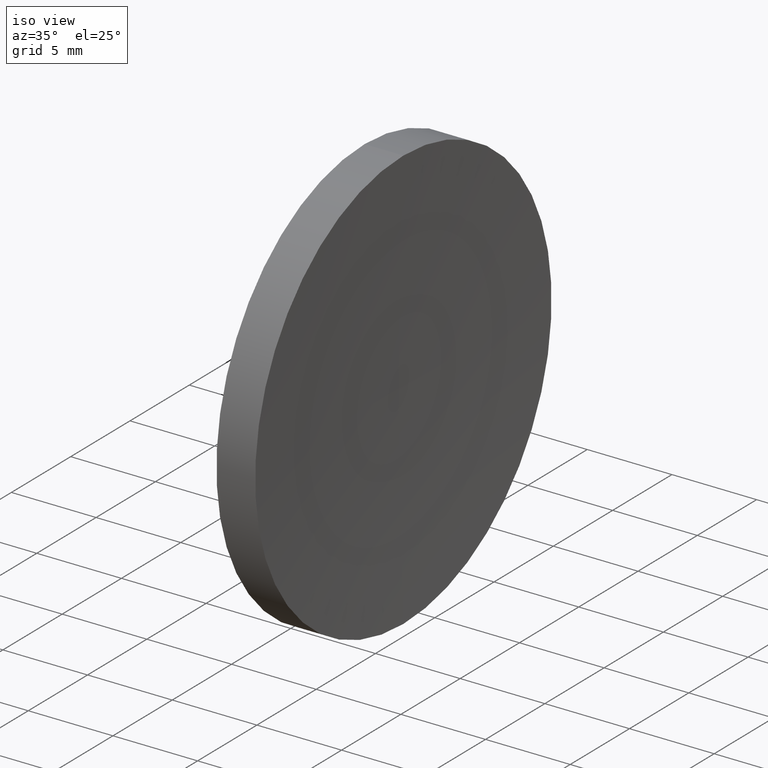
[diagram: clean part render]
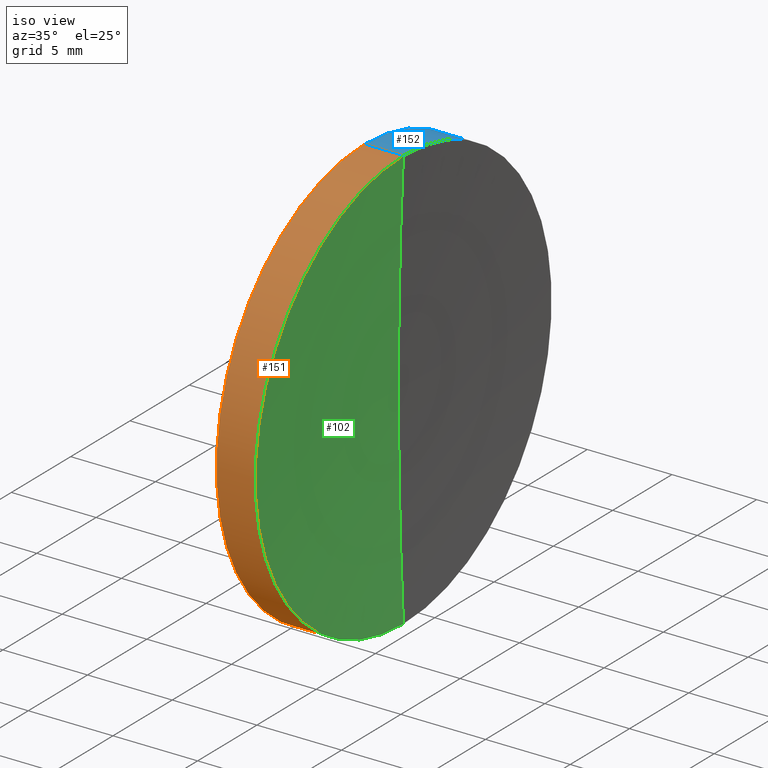
[diagram: same view with three faces highlighted in distinct colors, each labeled with its STEP entity id]
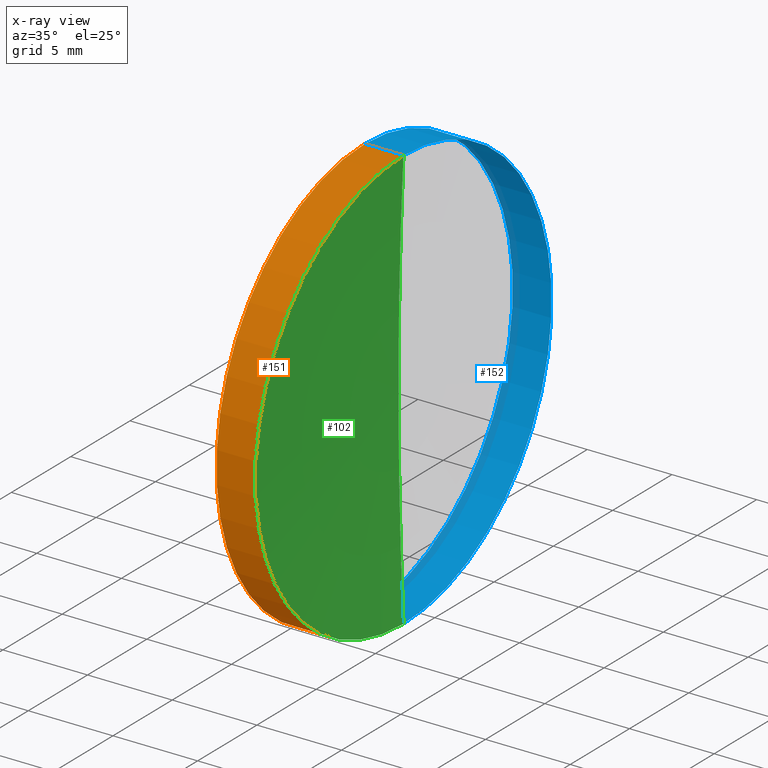
[diagram: x-ray of the same camera — body ghosted, the three highlighted faces saturated]
A machine part, iso view with three faces highlighted in distinct colors.
The next image is the same camera in x-ray (body ghosted, the three faces saturated) — at least one of them is partly hidden behind the body in this view.
Their STEP definitions:

[orange] entity #151 — the highlighted cylindrical surface (partial cylindrical patch) has radius 12.5 mm, axis along (-1, -0, -0).
#1 = DIRECTION ( 'NONE',  ( -1.000000000000000000, -0.0000000000000000000, -0.0000000000000000000 ) ) ;
#3 = DIRECTION ( 'NONE',  ( -1.000000000000000000, -0.0000000000000000000, -0.0000000000000000000 ) ) ;
#7 = DIRECTION ( 'NONE',  ( -1.000000000000000000, -0.0000000000000000000, -0.0000000000000000000 ) ) ;
#11 = CIRCLE ( 'NONE', #154, 12.49999999999999600 ) ;
#12 = DIRECTION ( 'NONE',  ( 0.0000000000000000000, 0.0000000000000000000, 1.000000000000000000 ) ) ;
#16 = VERTEX_POINT ( 'NONE', #114 ) ;
#20 = VERTEX_POINT ( 'NONE', #160 ) ;
#21 = CIRCLE ( 'NONE', #64, 12.49999999999999600 ) ;
#27 = ORIENTED_EDGE ( 'NONE', *, *, #147, .T. ) ;
#31 = AXIS2_PLACEMENT_3D ( 'NONE', #128, #153, #12 ) ;
#33 = CARTESIAN_POINT ( 'NONE',  ( 59.82088096594834100, 32.61076812922678400, -12.49999999999963900 ) ) ;
#38 = CYLINDRICAL_SURFACE ( 'NONE', #31, 12.49999999999999600 ) ;
#39 = DIRECTION ( 'NONE',  ( -1.000000000000000000, -0.0000000000000000000, -0.0000000000000000000 ) ) ;
#52 = EDGE_LOOP ( 'NONE', ( #98, #101, #27, #93 ) ) ;
#58 = EDGE_CURVE ( 'NONE', #85, #20, #21, .T. ) ;
#63 = CARTESIAN_POINT ( 'NONE',  ( 56.10091507999716500, 32.61076812922678400, -12.49999999999999600 ) ) ;
#64 = AXIS2_PLACEMENT_3D ( 'NONE', #136, #7, #115 ) ;
#66 = CARTESIAN_POINT ( 'NONE',  ( 56.10091507999716500, 32.61076812922678400, 12.49999999999999600 ) ) ;
#67 = EDGE_CURVE ( 'NONE', #16, #127, #11, .T. ) ;
#85 = VERTEX_POINT ( 'NONE', #33 ) ;
#93 = ORIENTED_EDGE ( 'NONE', *, *, #67, .F. ) ;
#98 = ORIENTED_EDGE ( 'NONE', *, *, #165, .F. ) ;
#101 = ORIENTED_EDGE ( 'NONE', *, *, #58, .T. ) ;
#103 = VECTOR ( 'NONE', #1, 1000.000000000000000 ) ;
#111 = CARTESIAN_POINT ( 'NONE',  ( 57.53233705252611700, 32.61076812922678400, 0.0000000000000000000 ) ) ;
#112 = VECTOR ( 'NONE', #39, 1000.000000000000000 ) ;
#114 = CARTESIAN_POINT ( 'NONE',  ( 57.53233705252611700, 32.61076812922678400, -12.49999999999999600 ) ) ;
#115 = DIRECTION ( 'NONE',  ( 0.0000000000000000000, 0.0000000000000000000, 1.000000000000000000 ) ) ;
#117 = LINE ( 'NONE', #63, #112 ) ;
#127 = VERTEX_POINT ( 'NONE', #156 ) ;
#128 = CARTESIAN_POINT ( 'NONE',  ( 56.10091507999716500, 32.61076812922678400, 0.0000000000000000000 ) ) ;
#136 = CARTESIAN_POINT ( 'NONE',  ( 59.82088096594833400, 32.61076812922678400, 0.0000000000000000000 ) ) ;
#142 = FACE_OUTER_BOUND ( 'NONE', #52, .T. ) ;
#146 = DIRECTION ( 'NONE',  ( 0.0000000000000000000, 0.0000000000000000000, 1.000000000000000000 ) ) ;
#147 = EDGE_CURVE ( 'NONE', #20, #127, #166, .T. ) ;
#151 = ADVANCED_FACE ( 'NONE', ( #142 ), #38, .T. ) ;
#153 = DIRECTION ( 'NONE',  ( -1.000000000000000000, -0.0000000000000000000, -0.0000000000000000000 ) ) ;
#154 = AXIS2_PLACEMENT_3D ( 'NONE', #111, #3, #146 ) ;
#156 = CARTESIAN_POINT ( 'NONE',  ( 57.53233705252611700, 32.61076812922678400, 12.49999999999999600 ) ) ;
#160 = CARTESIAN_POINT ( 'NONE',  ( 59.82088096594834100, 32.61076812922678400, 12.49999999999963900 ) ) ;
#165 = EDGE_CURVE ( 'NONE', #85, #16, #117, .T. ) ;
#166 = LINE ( 'NONE', #66, #103 ) ;

[blue] entity #152 — the highlighted cylindrical surface (partial cylindrical patch) has radius 12.5 mm, axis along (-1, -0, -0).
#1 = DIRECTION ( 'NONE',  ( -1.000000000000000000, -0.0000000000000000000, -0.0000000000000000000 ) ) ;
#9 = DIRECTION ( 'NONE',  ( 0.0000000000000000000, 0.0000000000000000000, 1.000000000000000000 ) ) ;
#15 = DIRECTION ( 'NONE',  ( -1.000000000000000000, -0.0000000000000000000, -0.0000000000000000000 ) ) ;
#16 = VERTEX_POINT ( 'NONE', #114 ) ;
#20 = VERTEX_POINT ( 'NONE', #160 ) ;
#30 = CARTESIAN_POINT ( 'NONE',  ( 59.82088096594833400, 32.61076812922678400, 0.0000000000000000000 ) ) ;
#33 = CARTESIAN_POINT ( 'NONE',  ( 59.82088096594834100, 32.61076812922678400, -12.49999999999963900 ) ) ;
#36 = ORIENTED_EDGE ( 'NONE', *, *, #125, .F. ) ;
#39 = DIRECTION ( 'NONE',  ( -1.000000000000000000, -0.0000000000000000000, -0.0000000000000000000 ) ) ;
#40 = CIRCLE ( 'NONE', #99, 12.49999999999999600 ) ;
#42 = FACE_OUTER_BOUND ( 'NONE', #162, .T. ) ;
#50 = CYLINDRICAL_SURFACE ( 'NONE', #116, 12.49999999999999600 ) ;
#53 = DIRECTION ( 'NONE',  ( 0.0000000000000000000, 0.0000000000000000000, 1.000000000000000000 ) ) ;
#62 = DIRECTION ( 'NONE',  ( -1.000000000000000000, -0.0000000000000000000, -0.0000000000000000000 ) ) ;
#63 = CARTESIAN_POINT ( 'NONE',  ( 56.10091507999716500, 32.61076812922678400, -12.49999999999999600 ) ) ;
#65 = ORIENTED_EDGE ( 'NONE', *, *, #144, .T. ) ;
#66 = CARTESIAN_POINT ( 'NONE',  ( 56.10091507999716500, 32.61076812922678400, 12.49999999999999600 ) ) ;
#85 = VERTEX_POINT ( 'NONE', #33 ) ;
#88 = CARTESIAN_POINT ( 'NONE',  ( 56.10091507999716500, 32.61076812922678400, 0.0000000000000000000 ) ) ;
#90 = AXIS2_PLACEMENT_3D ( 'NONE', #91, #15, #108 ) ;
#91 = CARTESIAN_POINT ( 'NONE',  ( 57.53233705252611700, 32.61076812922678400, 0.0000000000000000000 ) ) ;
#99 = AXIS2_PLACEMENT_3D ( 'NONE', #30, #122, #9 ) ;
#103 = VECTOR ( 'NONE', #1, 1000.000000000000000 ) ;
#108 = DIRECTION ( 'NONE',  ( 0.0000000000000000000, 0.0000000000000000000, 1.000000000000000000 ) ) ;
#112 = VECTOR ( 'NONE', #39, 1000.000000000000000 ) ;
#114 = CARTESIAN_POINT ( 'NONE',  ( 57.53233705252611700, 32.61076812922678400, -12.49999999999999600 ) ) ;
#116 = AXIS2_PLACEMENT_3D ( 'NONE', #88, #62, #53 ) ;
#117 = LINE ( 'NONE', #63, #112 ) ;
#122 = DIRECTION ( 'NONE',  ( -1.000000000000000000, -0.0000000000000000000, -0.0000000000000000000 ) ) ;
#125 = EDGE_CURVE ( 'NONE', #127, #16, #135, .T. ) ;
#127 = VERTEX_POINT ( 'NONE', #156 ) ;
#130 = ORIENTED_EDGE ( 'NONE', *, *, #165, .T. ) ;
#135 = CIRCLE ( 'NONE', #90, 12.49999999999999600 ) ;
#144 = EDGE_CURVE ( 'NONE', #20, #85, #40, .T. ) ;
#147 = EDGE_CURVE ( 'NONE', #20, #127, #166, .T. ) ;
#152 = ADVANCED_FACE ( 'NONE', ( #42 ), #50, .T. ) ;
#156 = CARTESIAN_POINT ( 'NONE',  ( 57.53233705252611700, 32.61076812922678400, 12.49999999999999600 ) ) ;
#157 = ORIENTED_EDGE ( 'NONE', *, *, #147, .F. ) ;
#160 = CARTESIAN_POINT ( 'NONE',  ( 59.82088096594834100, 32.61076812922678400, 12.49999999999963900 ) ) ;
#162 = EDGE_LOOP ( 'NONE', ( #65, #130, #36, #157 ) ) ;
#165 = EDGE_CURVE ( 'NONE', #85, #16, #117, .T. ) ;
#166 = LINE ( 'NONE', #66, #103 ) ;

[green] entity #102 — the highlighted toroidal blend (fillet) surface has major radius 0.2936 mm and minor (blend) radius 258.18 mm.
#4 = CIRCLE ( 'NONE', #25, 258.1799999999999500 ) ;
#6 = CARTESIAN_POINT ( 'NONE',  ( 317.7121700755695300, 32.61076812922678400, 0.0000000000000000000 ) ) ;
#7 = DIRECTION ( 'NONE',  ( -1.000000000000000000, -0.0000000000000000000, -0.0000000000000000000 ) ) ;
#13 = AXIS2_PLACEMENT_3D ( 'NONE', #118, #120, #131 ) ;
#20 = VERTEX_POINT ( 'NONE', #160 ) ;
#21 = CIRCLE ( 'NONE', #64, 12.49999999999999600 ) ;
#25 = AXIS2_PLACEMENT_3D ( 'NONE', #164, #105, #76 ) ;
#26 = FACE_OUTER_BOUND ( 'NONE', #48, .T. ) ;
#32 = VERTEX_POINT ( 'NONE', #46 ) ;
#33 = CARTESIAN_POINT ( 'NONE',  ( 59.82088096594834100, 32.61076812922678400, -12.49999999999963900 ) ) ;
#35 = ORIENTED_EDGE ( 'NONE', *, *, #148, .F. ) ;
#45 = DIRECTION ( 'NONE',  ( -1.000000000000000000, -0.0000000000000000000, -0.0000000000000000000 ) ) ;
#46 = CARTESIAN_POINT ( 'NONE',  ( 59.53233705252619500, 32.61076812922678400, 0.0000000000000000000 ) ) ;
#48 = EDGE_LOOP ( 'NONE', ( #140, #80, #35 ) ) ;
#58 = EDGE_CURVE ( 'NONE', #85, #20, #21, .T. ) ;
#64 = AXIS2_PLACEMENT_3D ( 'NONE', #136, #7, #115 ) ;
#71 = DIRECTION ( 'NONE',  ( 0.0000000000000000000, 0.0000000000000000000, 1.000000000000000000 ) ) ;
#75 = CIRCLE ( 'NONE', #13, 258.1799999999999500 ) ;
#76 = DIRECTION ( 'NONE',  ( 0.0000000000000000000, 0.0000000000000000000, -1.000000000000000000 ) ) ;
#80 = ORIENTED_EDGE ( 'NONE', *, *, #155, .T. ) ;
#85 = VERTEX_POINT ( 'NONE', #33 ) ;
#102 = ADVANCED_FACE ( 'NONE', ( #26 ), #124, .F. ) ;
#105 = DIRECTION ( 'NONE',  ( 0.0000000000000000000, -1.000000000000000000, 0.0000000000000000000 ) ) ;
#115 = DIRECTION ( 'NONE',  ( 0.0000000000000000000, 0.0000000000000000000, 1.000000000000000000 ) ) ;
#118 = CARTESIAN_POINT ( 'NONE',  ( 317.7121700755695300, 32.61076812922678400, -0.2936327526264770300 ) ) ;
#120 = DIRECTION ( 'NONE',  ( -0.0000000000000000000, 1.000000000000000000, 1.224646799147353200E-016 ) ) ;
#123 = AXIS2_PLACEMENT_3D ( 'NONE', #6, #45, #71 ) ;
#124 = TOROIDAL_SURFACE ( 'NONE', #123, 0.2936327526264770300, 258.1799999999998900 ) ;
#131 = DIRECTION ( 'NONE',  ( 0.0000000000000000000, -1.343809339202732700E-016, 1.000000000000000000 ) ) ;
#136 = CARTESIAN_POINT ( 'NONE',  ( 59.82088096594833400, 32.61076812922678400, 0.0000000000000000000 ) ) ;
#140 = ORIENTED_EDGE ( 'NONE', *, *, #58, .F. ) ;
#148 = EDGE_CURVE ( 'NONE', #20, #32, #4, .T. ) ;
#155 = EDGE_CURVE ( 'NONE', #85, #32, #75, .T. ) ;
#160 = CARTESIAN_POINT ( 'NONE',  ( 59.82088096594834100, 32.61076812922678400, 12.49999999999963900 ) ) ;
#164 = CARTESIAN_POINT ( 'NONE',  ( 317.7121700755695300, 32.61076812922678400, 0.2936327526264770300 ) ) ;